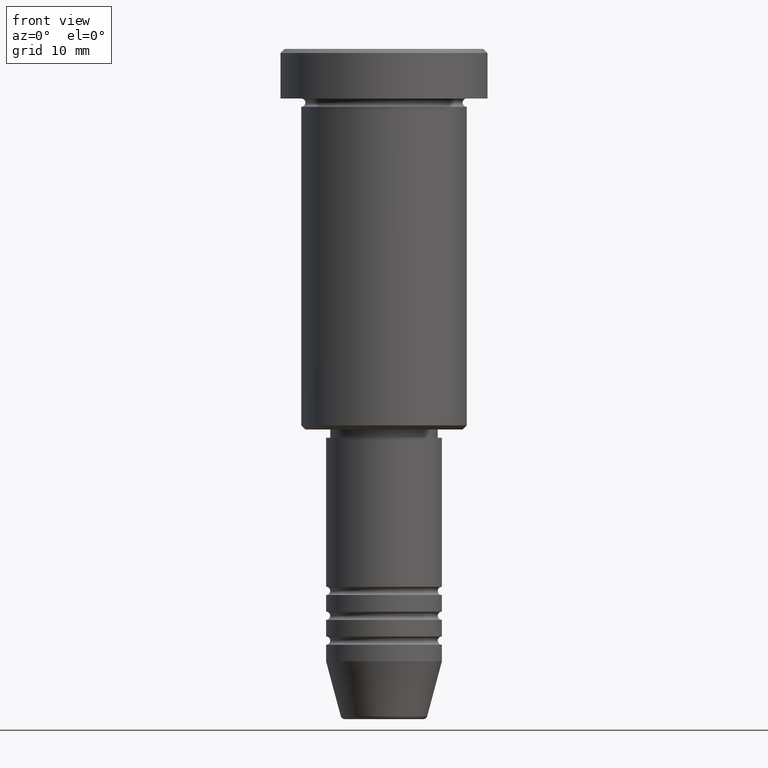
[diagram: clean part render]
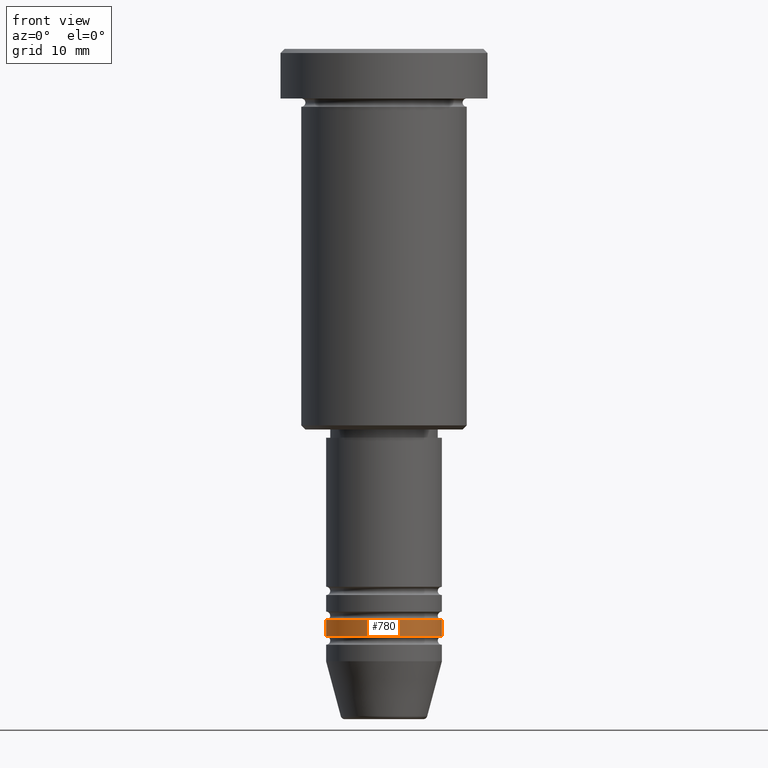
[diagram: same view with one face highlighted and labeled with its STEP entity id]
A machine part, front view. The second image highlights one B-rep face of the part: STEP entity #780.
In plain terms, the highlighted cylindrical surface (partial cylindrical patch) has radius 7 mm, axis along (-0, -0, 1).
Its self-contained STEP definition (entity closure, byte-faithful):
#13 = CARTESIAN_POINT ( 'NONE',  ( 7.000000000000000000, 0.000000000000000000, -71.00000000000000000 ) ) ;
#60 = EDGE_CURVE ( 'NONE', #335, #930, #177, .T. ) ;
#76 = ORIENTED_EDGE ( 'NONE', *, *, #95, .T. ) ;
#95 = EDGE_CURVE ( 'NONE', #104, #645, #713, .T. ) ;
#104 = VERTEX_POINT ( 'NONE', #1084 ) ;
#173 = CARTESIAN_POINT ( 'NONE',  ( 7.000000000000000000, 0.000000000000000000, -68.99999999999998579 ) ) ;
#177 = CIRCLE ( 'NONE', #1123, 7.000000000000000000 ) ;
#216 = DIRECTION ( 'NONE',  ( 1.000000000000000000, 0.000000000000000000, 0.000000000000000000 ) ) ;
#218 = DIRECTION ( 'NONE',  ( -0.000000000000000000, -0.000000000000000000, 1.000000000000000000 ) ) ;
#221 = CYLINDRICAL_SURFACE ( 'NONE', #732, 7.000000000000000000 ) ;
#301 = CARTESIAN_POINT ( 'NONE',  ( -7.000000000000000000, 8.572527594031473190E-16, -68.99999999999998579 ) ) ;
#335 = VERTEX_POINT ( 'NONE', #301 ) ;
#341 = DIRECTION ( 'NONE',  ( -0.000000000000000000, -0.000000000000000000, 1.000000000000000000 ) ) ;
#353 = EDGE_CURVE ( 'NONE', #104, #335, #399, .T. ) ;
#365 = CARTESIAN_POINT ( 'NONE',  ( 0.000000000000000000, 0.000000000000000000, -71.00000000000000000 ) ) ;
#391 = CARTESIAN_POINT ( 'NONE',  ( 0.000000000000000000, 0.000000000000000000, 0.000000000000000000 ) ) ;
#399 = LINE ( 'NONE', #776, #883 ) ;
#455 = DIRECTION ( 'NONE',  ( -0.000000000000000000, -0.000000000000000000, 1.000000000000000000 ) ) ;
#555 = ORIENTED_EDGE ( 'NONE', *, *, #931, .T. ) ;
#571 = FACE_OUTER_BOUND ( 'NONE', #696, .T. ) ;
#580 = ORIENTED_EDGE ( 'NONE', *, *, #60, .F. ) ;
#591 = DIRECTION ( 'NONE',  ( -0.000000000000000000, -0.000000000000000000, 1.000000000000000000 ) ) ;
#622 = DIRECTION ( 'NONE',  ( -0.000000000000000000, -0.000000000000000000, 1.000000000000000000 ) ) ;
#645 = VERTEX_POINT ( 'NONE', #13 ) ;
#696 = EDGE_LOOP ( 'NONE', ( #1121, #76, #555, #580 ) ) ;
#713 = CIRCLE ( 'NONE', #1151, 7.000000000000000000 ) ;
#722 = DIRECTION ( 'NONE',  ( 1.000000000000000000, 0.000000000000000000, 0.000000000000000000 ) ) ;
#732 = AXIS2_PLACEMENT_3D ( 'NONE', #391, #591, #216 ) ;
#776 = CARTESIAN_POINT ( 'NONE',  ( -7.000000000000000000, 8.572527594031473190E-16, 0.000000000000000000 ) ) ;
#780 = ADVANCED_FACE ( 'NONE', ( #571 ), #221, .T. ) ;
#883 = VECTOR ( 'NONE', #218, 1000.000000000000000 ) ;
#930 = VERTEX_POINT ( 'NONE', #173 ) ;
#931 = EDGE_CURVE ( 'NONE', #645, #930, #978, .T. ) ;
#978 = LINE ( 'NONE', #1057, #1026 ) ;
#1026 = VECTOR ( 'NONE', #341, 1000.000000000000000 ) ;
#1057 = CARTESIAN_POINT ( 'NONE',  ( 7.000000000000000000, 0.000000000000000000, 0.000000000000000000 ) ) ;
#1084 = CARTESIAN_POINT ( 'NONE',  ( -7.000000000000000000, 8.572527594031473190E-16, -71.00000000000000000 ) ) ;
#1093 = DIRECTION ( 'NONE',  ( 1.000000000000000000, 0.000000000000000000, 0.000000000000000000 ) ) ;
#1121 = ORIENTED_EDGE ( 'NONE', *, *, #353, .F. ) ;
#1123 = AXIS2_PLACEMENT_3D ( 'NONE', #1176, #622, #1093 ) ;
#1151 = AXIS2_PLACEMENT_3D ( 'NONE', #365, #455, #722 ) ;
#1176 = CARTESIAN_POINT ( 'NONE',  ( 0.000000000000000000, 0.000000000000000000, -68.99999999999998579 ) ) ;